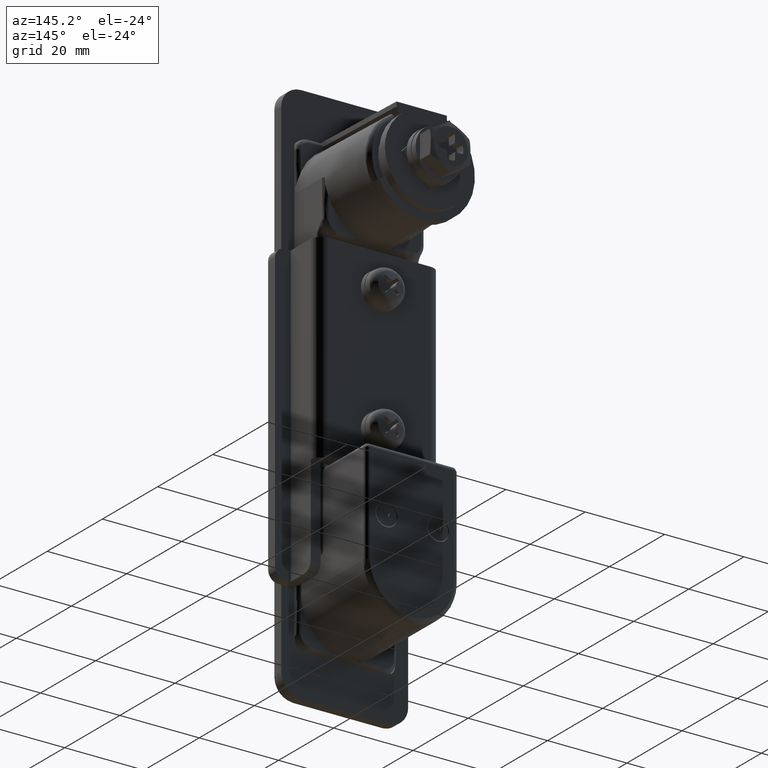
[diagram: clean part render]
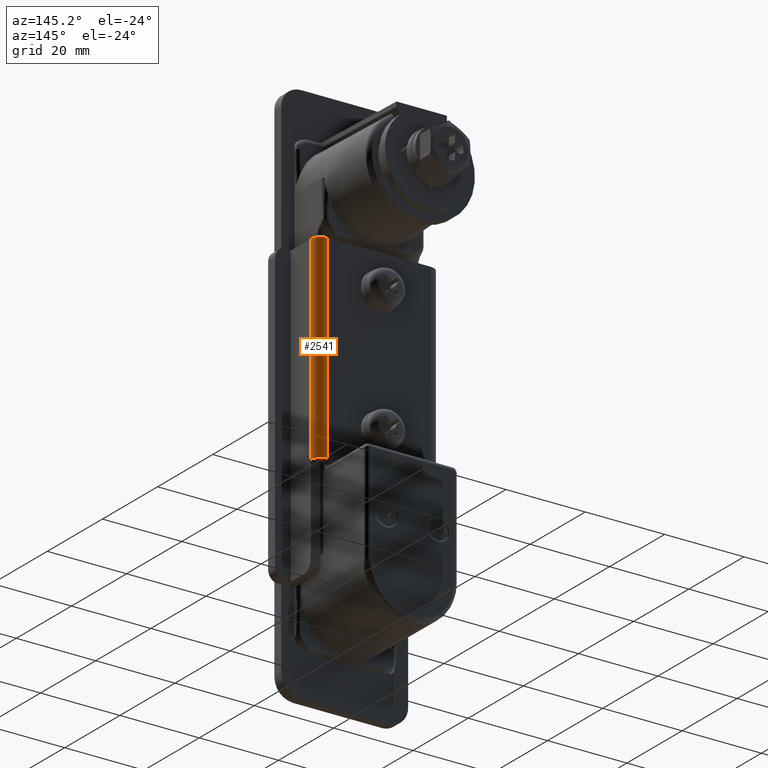
[diagram: same view with one face highlighted and labeled with its STEP entity id]
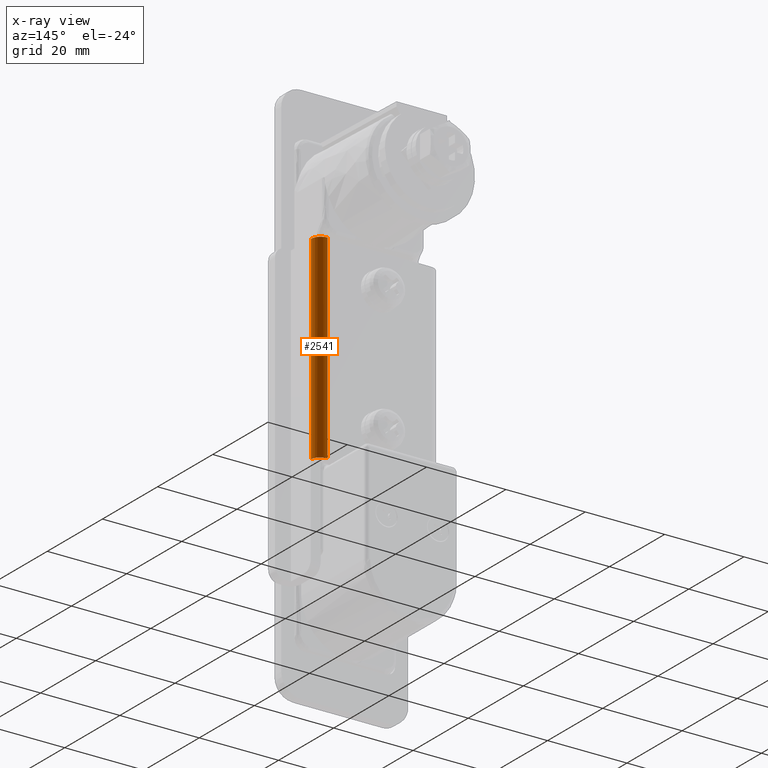
[diagram: x-ray of the same camera — body ghosted, the highlighted face saturated]
A machine part, auxiliary view. The second image highlights one B-rep face of the part: STEP entity #2541.
The next image is the same camera in x-ray: the body ghosted, the highlighted face saturated — about 0% of this face is hidden behind the body in this view.
In plain terms, the highlighted face is a freeform B-spline surface patch.
Its self-contained STEP definition (entity closure, byte-faithful):
#1966=CARTESIAN_POINT('',(14.0,-15.500000000000000,-64.500000000000000));
#1967=VERTEX_POINT('',#1966);
#2272=CARTESIAN_POINT('',(16.500000000000000,-13.0,-64.500000000000000));
#2273=VERTEX_POINT('',#2272);
#2279=CARTESIAN_POINT('',(16.500000000000000,-13.0,-64.500000000000000));
#2280=CARTESIAN_POINT('',(16.500620721293838,-13.368298936898640,-64.499999999999872));
#2281=CARTESIAN_POINT('',(16.380291359568321,-13.899519027885990,-64.500000000000156));
#2282=CARTESIAN_POINT('',(15.978740361466050,-14.569422423771790,-64.499999999999972));
#2283=CARTESIAN_POINT('',(15.569408988443000,-14.978727515919420,-64.500000000000043));
#2284=CARTESIAN_POINT('',(14.899527101084850,-15.380299048347270,-64.499999999999844));
#2285=CARTESIAN_POINT('',(14.368297111017039,-15.500619772104031,-64.500000000000085));
#2286=CARTESIAN_POINT('',(14.0,-15.500000000000000,-64.500000000000000));
#2287=B_SPLINE_CURVE_WITH_KNOTS('',3,(#2279,#2280,#2281,#2282,#2283,#2284,#2285,#2286),.UNSPECIFIED.,.F.,.U.,(4,1,1,1,1,4),(0.000000307275978,1.104502722684897,1.595421393526997,2.331668274612927,2.822586945455119,3.927089360864201),.UNSPECIFIED.);
#2288=EDGE_CURVE('',#2273,#1967,#2287,.T.);
#2314=CARTESIAN_POINT('',(14.0,-15.500000000000000,-14.500000000000000));
#2315=VERTEX_POINT('',#2314);
#2321=CARTESIAN_POINT('',(16.500000000000000,-12.999999781833839,-14.500000000000000));
#2322=VERTEX_POINT('',#2321);
#2323=CARTESIAN_POINT('',(14.0,-15.500000000000000,-14.500000000000000));
#2324=CARTESIAN_POINT('',(14.306830436191481,-15.500238461812300,-14.500000000000011));
#2325=CARTESIAN_POINT('',(14.838416647396709,-15.400836336341751,-14.500000000000011));
#2326=CARTESIAN_POINT('',(15.525565798933741,-15.022644904470610,-14.499999999999989));
#2327=CARTESIAN_POINT('',(15.978734992070279,-14.569401890679490,-14.500000000000020));
#2328=CARTESIAN_POINT('',(16.380293735578320,-13.899528057383000,-14.499999999999970));
#2329=CARTESIAN_POINT('',(16.500620562252038,-13.368296509452451,-14.500000000000020));
#2330=CARTESIAN_POINT('',(16.500000000000000,-12.999999781833839,-14.500000000000000));
#2331=B_SPLINE_CURVE_WITH_KNOTS('',3,(#2323,#2324,#2325,#2326,#2327,#2328,#2329,#2330),.UNSPECIFIED.,.F.,.U.,(4,1,1,1,1,4),(0.000000307128381,0.920409224027809,1.595421443331702,2.331668347669640,2.822587033921251,3.927089483829294),.UNSPECIFIED.);
#2332=EDGE_CURVE('',#2315,#2322,#2331,.T.);
#2513=CARTESIAN_POINT('',(16.497620553954640,-12.890951531586660,-65.750000000000000));
#2514=CARTESIAN_POINT('',(16.497620553954640,-12.890951531586660,-13.218750000000000));
#2515=CARTESIAN_POINT('',(16.618731147697456,-15.664840176103313,-65.750000000000000));
#2516=CARTESIAN_POINT('',(16.618731147697456,-15.664840176103313,-13.218750000000000));
#2517=CARTESIAN_POINT('',(13.847378651162860,-15.495336996054670,-65.750000000000000));
#2518=CARTESIAN_POINT('',(13.847378651162860,-15.495336996054670,-13.218750000000000));
#2526=(BOUNDED_SURFACE()B_SPLINE_SURFACE(1,2,((#2513,#2515,#2517),(#2514,#2516,#2518)),.UNSPECIFIED.,.F.,.F.,.U.)B_SPLINE_SURFACE_WITH_KNOTS((2,2),(3,3),(0.0,52.531250000000000),(0.0,4.452286853085357),.UNSPECIFIED.)GEOMETRIC_REPRESENTATION_ITEM()RATIONAL_B_SPLINE_SURFACE(((1.0,0.669130606358859,1.0),(1.0,0.669130606358859,1.0)))REPRESENTATION_ITEM('')SURFACE());
#2527=ORIENTED_EDGE('',*,*,#2288,.F.);
#2528=CARTESIAN_POINT('',(16.500000000000000,-13.0,-64.500000000000000));
#2529=CARTESIAN_POINT('',(16.500000000000000,-12.999999781833839,-14.500000000000000));
#2530=QUASI_UNIFORM_CURVE('',1,(#2528,#2529),.UNSPECIFIED.,.F.,.U.);
#2531=EDGE_CURVE('',#2273,#2322,#2530,.T.);
#2532=ORIENTED_EDGE('',*,*,#2531,.T.);
#2533=ORIENTED_EDGE('',*,*,#2332,.F.);
#2534=CARTESIAN_POINT('',(14.0,-15.500000000000000,-64.500000000000000));
#2535=CARTESIAN_POINT('',(14.0,-15.500000000000000,-14.500000000000000));
#2536=QUASI_UNIFORM_CURVE('',1,(#2534,#2535),.UNSPECIFIED.,.F.,.U.);
#2537=EDGE_CURVE('',#1967,#2315,#2536,.T.);
#2538=ORIENTED_EDGE('',*,*,#2537,.F.);
#2539=EDGE_LOOP('',(#2527,#2532,#2533,#2538));
#2540=FACE_OUTER_BOUND('',#2539,.T.);
#2541=ADVANCED_FACE('',(#2540),#2526,.T.);